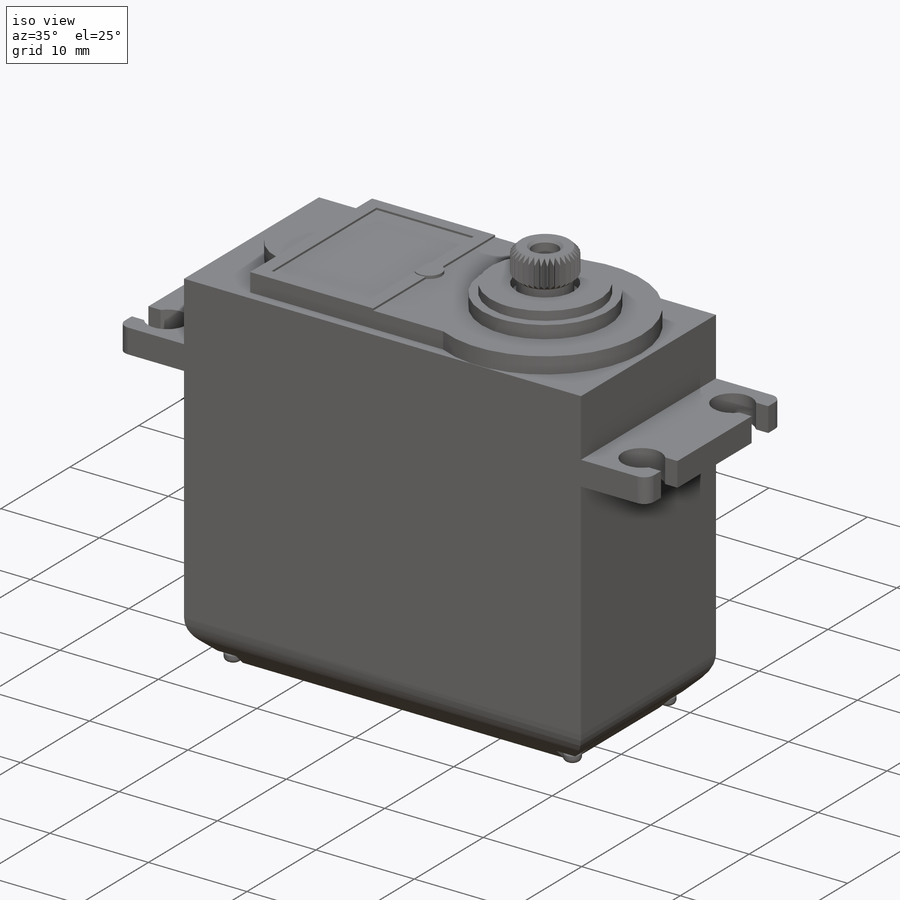
[diagram: iso view]
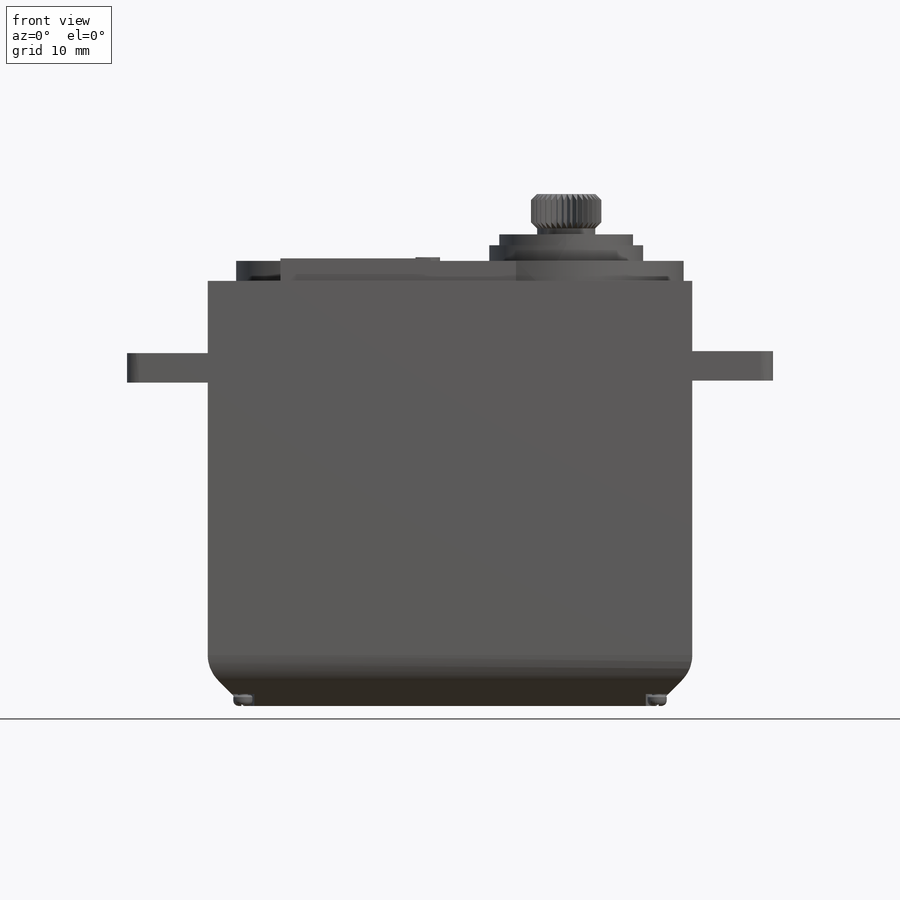
[diagram: front view]
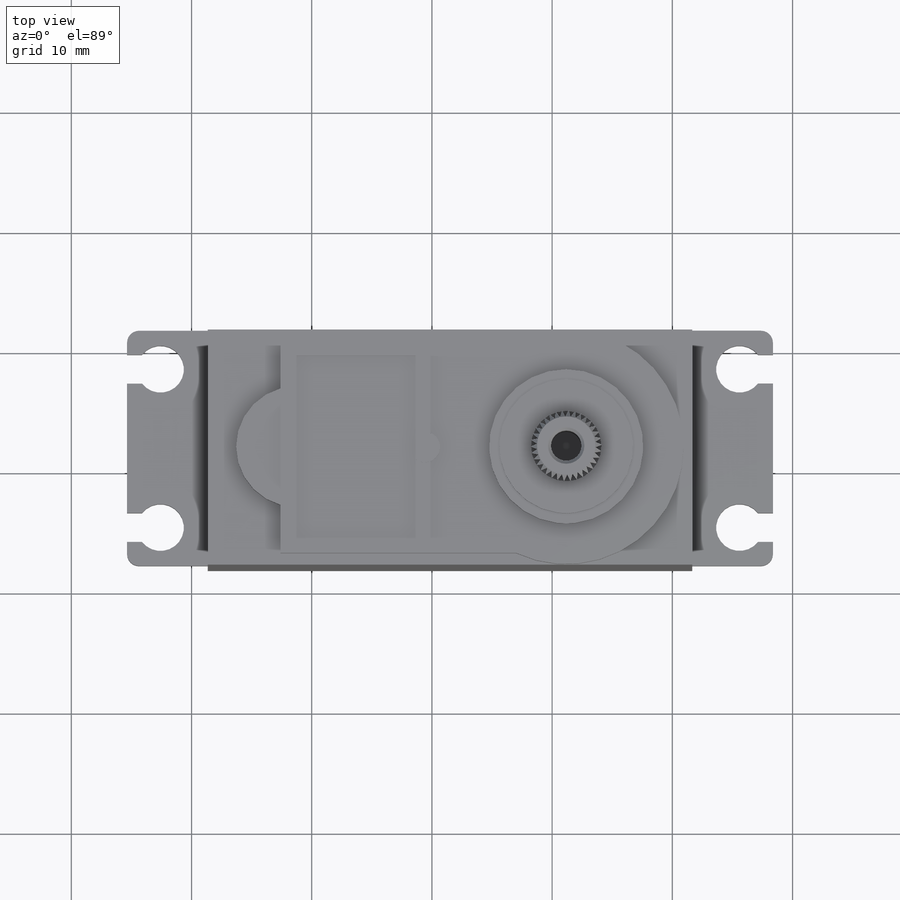
[diagram: top view]
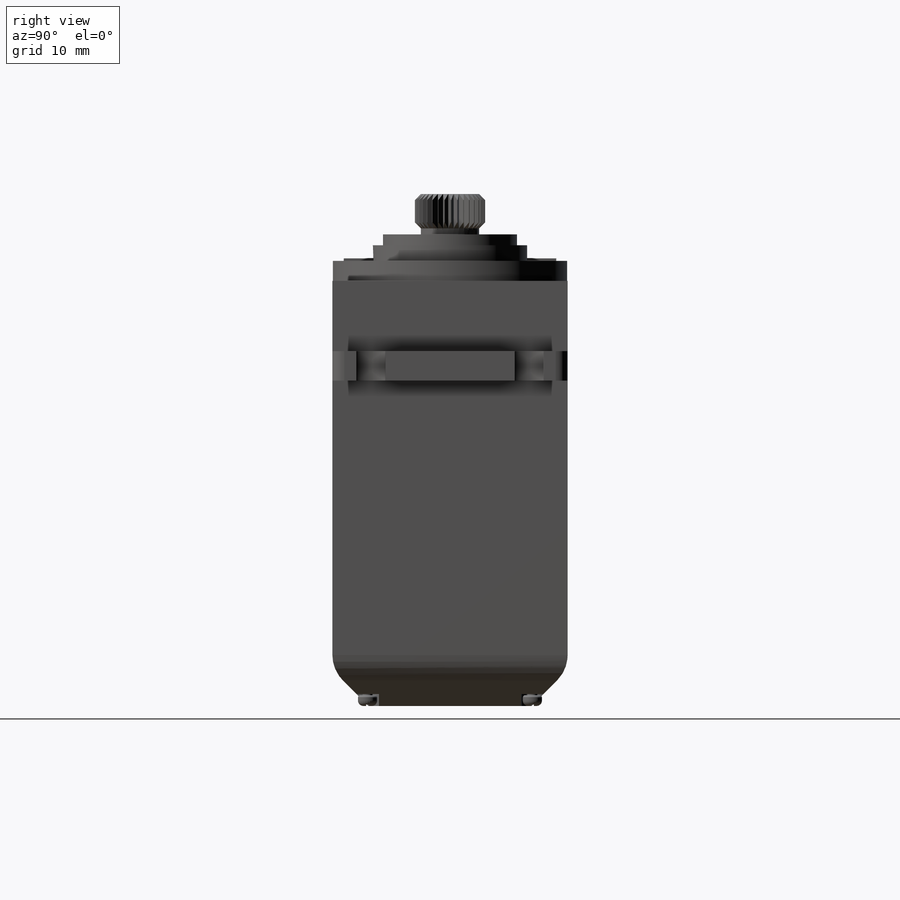
[diagram: right view]
SOLIDWORKS PART (.sldprt)
format: sldprt  version: not decoded by parser v0  size: 869,888 bytes
history: native  units: mm
features: sketch x20, extrude x12, cut_extrude x8, fillet x5, chamfer x2, material x1, pattern_circular x1 (+16 scaffold rows collapsed)
feature tree (65):
  scaffold x16  (default folders/planes/origin — collapsed)
  material  "Material <not specified>"
  sketch  "Sketch1"  dims[D1=19.57mm]
  extrude  "Boss-Extrude1"  Depth=35.37mm
  sketch  "Sketch2"  dims[D1=3.0mm]
  cut_extrude  "Cut-Extrude1"  [1 undecoded]
  sketch  "Sketch3"  dims[D1=3.0mm]
  cut_extrude  "Cut-Extrude2"  [1 undecoded]
  fillet  "Fillet2"  Radius=3mm
  sketch  "Sketch5"  dims[D1=9.785mm]
  extrude  "Boss-Extrude2"  Depth=6.71mm
  sketch  "Sketch7"  dims[D1=2.46mm]
  extrude  "Boss-Extrude3"  Depth=6.71mm
  sketch  "Sketch8"  dims[D1=1.2mm]
  cut_extrude  "Cut-Extrude3"  [1 undecoded]
  sketch  "Sketch9"  dims[D1=2.36mm]
  extrude  "Boss-Extrude4"  Depth=1.67mm
  sketch  "Sketch10"  dims[D1=~3.147015mm]
  extrude  "Boss-Extrude5"  Depth=1.3mm
  sketch  "Sketch11"  dims[D1=~3.896529mm]
  extrude  "Boss-Extrude6"  Depth=0.9mm
  sketch  "Sketch12"  dims[D1=~1.824419mm]
  cut_extrude  "Cut-Extrude4"  Depth=1mm
  sketch  "Sketch13"  dims[D1=2.925mm]
  extrude  "Boss-Extrude7"  Depth=1.5mm
  sketch  "Sketch14"  dims[D1=2.425mm]
  extrude  "Boss-Extrude8"  Depth=2.86mm
  sketch  "Sketch15"  dims[D1=1.25mm]
  cut_extrude  "Cut-Extrude5"  Depth=7mm
  sketch  "Sketch16"  dims[D1=1.0mm]
  extrude  "Boss-Extrude9"  Depth=0.2mm
  sketch  "Sketch17"  dims[D1=1.0mm]
  extrude  "Boss-Extrude10"  Depth=0.1mm
  sketch  "Sketch19"  dims[D1=0.5mm]
  cut_extrude  "Cut-Extrude11"  Depth=3mm
  sketch  "Sketch21"  dims[D1=3.0mm]
  cut_extrude  "Cut-Extrude12"  Depth=1mm
  fillet  "Fillet4"  Radius=1mm
  fillet  "Fillet5"  Radius=1mm
  chamfer  "Chamfer2"  Distance=0.5mm Angle=45deg
  chamfer  "Chamfer3"  Distance=0.25mm Angle=45deg
  pattern_circular  "CirPattern12"  Count=34 Angle=360deg
  sketch  "Sketch23"
  extrude  "Boss-Extrude12"  Depth=0.1mm
  sketch  "Sketch24"  dims[D1=~0.928932mm]
  extrude  "Boss-Extrude13"  Depth=0.9mm
  fillet  "Fillet8"  Radius=0.45mm
  fillet  "Fillet9"  Radius=0.2mm
  sketch  "Sketch25"  dims[D1=0.25mm]
  cut_extrude  "Cut-Extrude14"  Depth=0.6mm
decode coverage: 44 of 48 modeling features carry decoded parameters
note: ~ marks probable driven/reference dimensions
note: 3 parameter values undecoded
summary: no parameter record found for 3 features
note: suppression state not decoded; provenance and decode notes live in map.json
